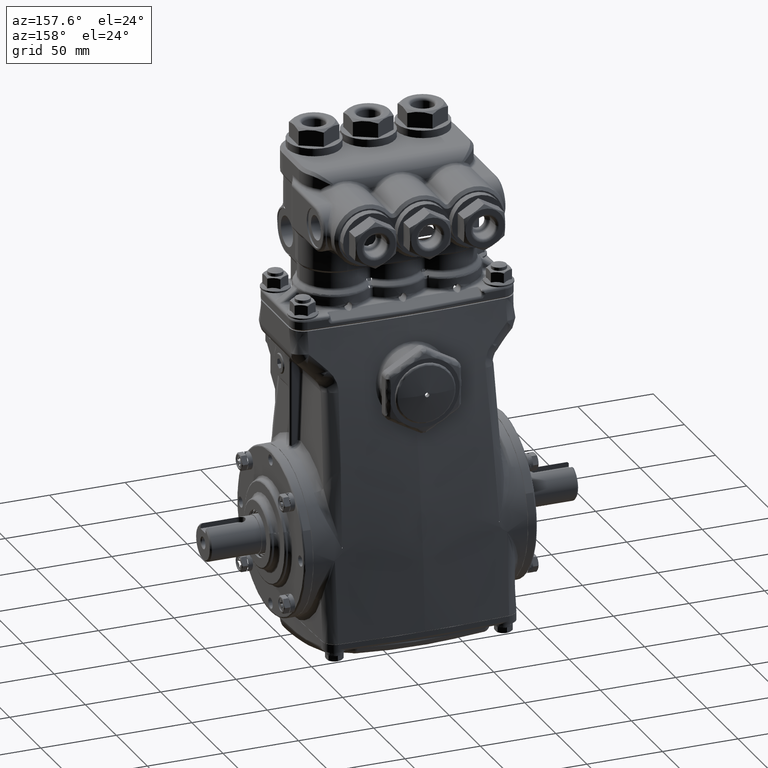
[diagram: clean part render]
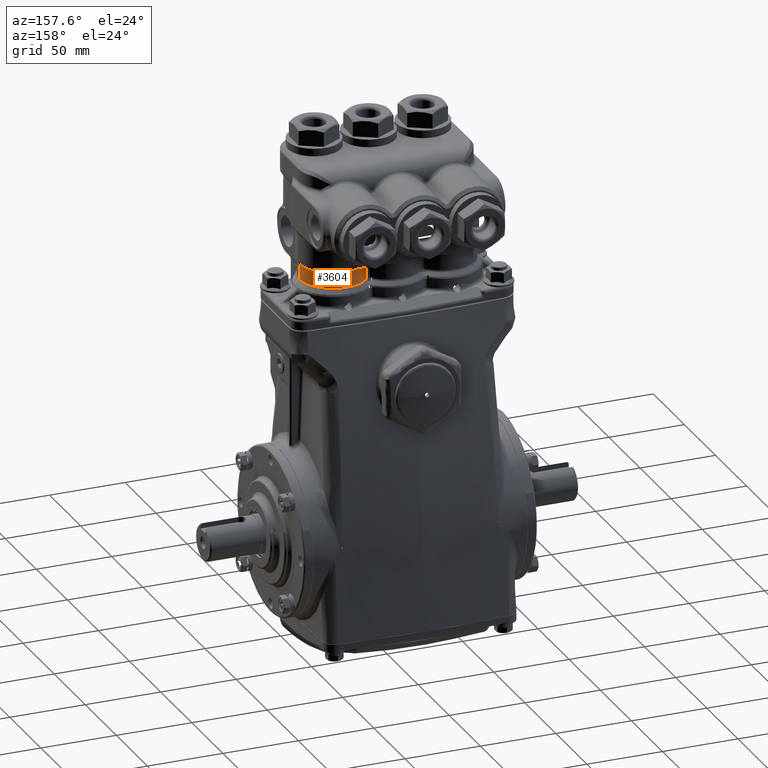
[diagram: same view with one face highlighted and labeled with its STEP entity id]
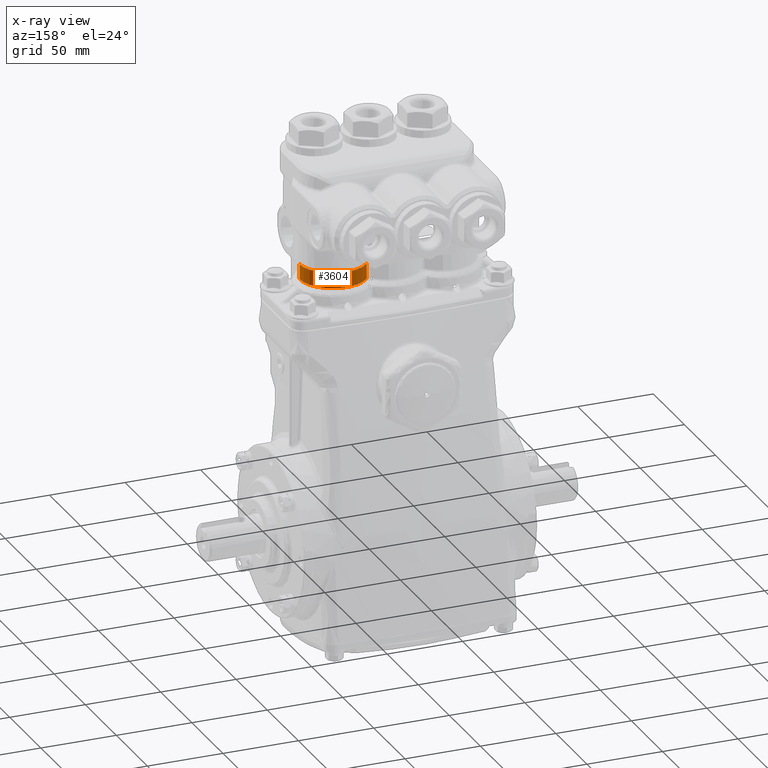
[diagram: x-ray of the same camera — body ghosted, the highlighted face saturated]
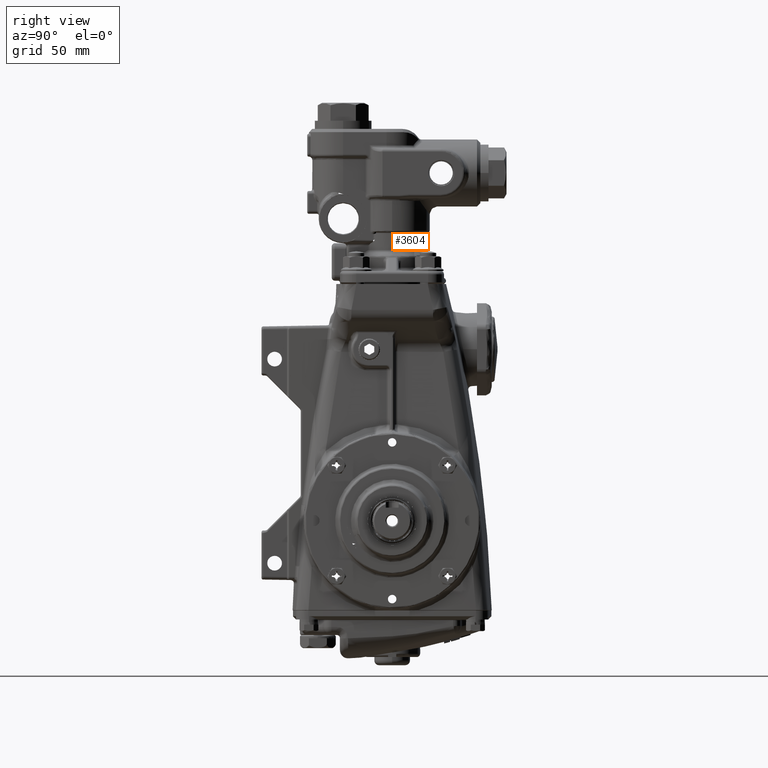
[diagram: same view with one face highlighted and labeled with its STEP entity id]
A machine part, auxiliary view. The second image highlights one B-rep face of the part: STEP entity #3604.
The next image is the same camera in x-ray: the body ghosted, the highlighted face saturated — about 0% of this face is hidden behind the body in this view.
A second angle (right view) of the same face is appended — the face is thin or edge-on in the first view.
In plain terms, the highlighted cylindrical surface (edge-blend (fillet) strip) has radius 22 mm, axis along (0, 0, -1).
Its self-contained STEP definition (entity closure, byte-faithful):
#3163 = CYLINDRICAL_SURFACE ( 'NONE', #9532, 0.8661417322834640276 ) ;
#3604 = ADVANCED_FACE ( 'NONE', ( #110267 ), #3163, .T. ) ;
#9532 = AXIS2_PLACEMENT_3D ( 'NONE', #92447, #30824, #64866 ) ;
#17786 = VERTEX_POINT ( 'NONE', #81617 ) ;
#17818 = DIRECTION ( 'NONE',  ( 0.000000000000000000, 0.000000000000000000, -1.000000000000000000 ) ) ;
#18820 = VERTEX_POINT ( 'NONE', #97630 ) ;
#24307 = DIRECTION ( 'NONE',  ( 0.000000000000000000, 0.000000000000000000, -1.000000000000000000 ) ) ;
#24381 = CARTESIAN_POINT ( 'NONE',  ( 1.417322834645669216, 0.000000000000000000, 6.929133858267717549 ) ) ;
#24953 = DIRECTION ( 'NONE',  ( -0.000000000000000000, -0.000000000000000000, 1.000000000000000000 ) ) ;
#25279 = EDGE_CURVE ( 'NONE', #84880, #18820, #47220, .T. ) ;
#27082 = DIRECTION ( 'NONE',  ( 1.000000000000000000, 0.000000000000000000, 0.000000000000000000 ) ) ;
#29100 = DIRECTION ( 'NONE',  ( 0.000000000000000000, 0.000000000000000000, -1.000000000000000000 ) ) ;
#30049 = ORIENTED_EDGE ( 'NONE', *, *, #25279, .F. ) ;
#30750 = CIRCLE ( 'NONE', #65717, 0.8661417322834640276 ) ;
#30824 = DIRECTION ( 'NONE',  ( 0.000000000000000000, 0.000000000000000000, -1.000000000000000000 ) ) ;
#33702 = CARTESIAN_POINT ( 'NONE',  ( 2.283464566929133355, 0.000000000000000000, 6.929133858267717549 ) ) ;
#37471 = ORIENTED_EDGE ( 'NONE', *, *, #53499, .F. ) ;
#40491 = ORIENTED_EDGE ( 'NONE', *, *, #112788, .F. ) ;
#40630 = CARTESIAN_POINT ( 'NONE',  ( 0.7809738068455731597, 0.5875894954990877883, 6.528678233257727115 ) ) ;
#45713 = VERTEX_POINT ( 'NONE', #33702 ) ;
#45803 = LINE ( 'NONE', #73431, #67954 ) ;
#47220 = CIRCLE ( 'NONE', #95040, 0.8661417322834640276 ) ;
#48570 = EDGE_CURVE ( 'NONE', #45713, #18820, #45803, .T. ) ;
#53499 = EDGE_CURVE ( 'NONE', #45713, #17786, #30750, .T. ) ;
#64866 = DIRECTION ( 'NONE',  ( 1.000000000000000000, 0.000000000000000000, 0.000000000000000000 ) ) ;
#65717 = AXIS2_PLACEMENT_3D ( 'NONE', #24381, #24953, #110789 ) ;
#66430 = CARTESIAN_POINT ( 'NONE',  ( 0.7809738068455731597, 0.5875894954990877883, 6.968503937007874960 ) ) ;
#67954 = VECTOR ( 'NONE', #29100, 39.37007874015748143 ) ;
#73431 = CARTESIAN_POINT ( 'NONE',  ( 2.283464566929133355, 0.000000000000000000, 6.968503937007874960 ) ) ;
#73856 = ORIENTED_EDGE ( 'NONE', *, *, #48570, .T. ) ;
#79878 = EDGE_LOOP ( 'NONE', ( #37471, #73856, #30049, #40491 ) ) ;
#81617 = CARTESIAN_POINT ( 'NONE',  ( 0.7809738068455731597, 0.5875894954990877883, 6.929133858267717549 ) ) ;
#84880 = VERTEX_POINT ( 'NONE', #40630 ) ;
#88685 = CARTESIAN_POINT ( 'NONE',  ( 1.417322834645669216, 0.000000000000000000, 6.528678233257727115 ) ) ;
#92447 = CARTESIAN_POINT ( 'NONE',  ( 1.417322834645669216, 0.000000000000000000, 6.968503937007874960 ) ) ;
#95040 = AXIS2_PLACEMENT_3D ( 'NONE', #88685, #17818, #27082 ) ;
#96045 = VECTOR ( 'NONE', #24307, 39.37007874015748143 ) ;
#97630 = CARTESIAN_POINT ( 'NONE',  ( 2.283464566929133355, 0.000000000000000000, 6.528678233257727115 ) ) ;
#110267 = FACE_OUTER_BOUND ( 'NONE', #79878, .T. ) ;
#110789 = DIRECTION ( 'NONE',  ( 1.000000000000000000, 0.000000000000000000, 0.000000000000000000 ) ) ;
#112406 = LINE ( 'NONE', #66430, #96045 ) ;
#112788 = EDGE_CURVE ( 'NONE', #17786, #84880, #112406, .T. ) ;